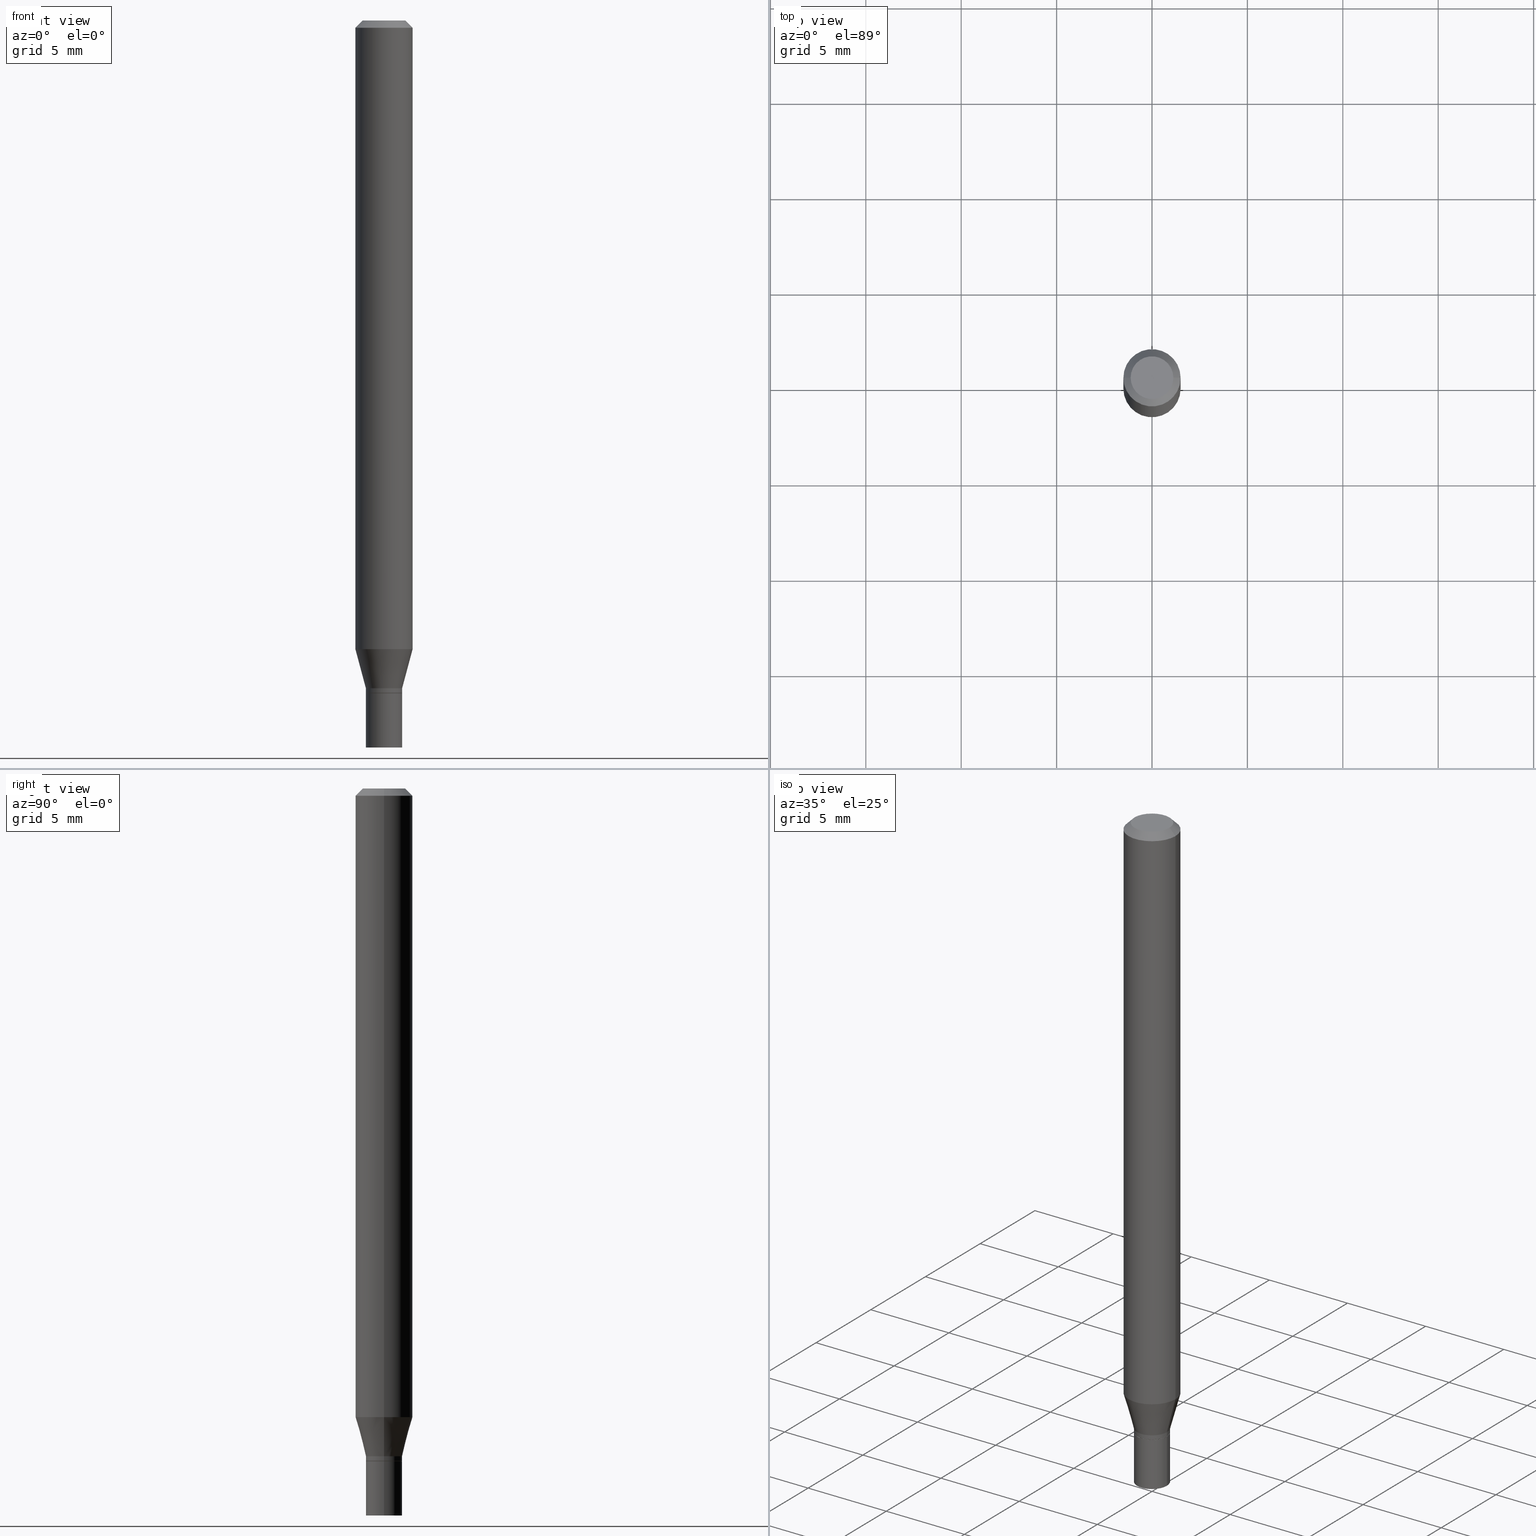
[diagram: canonical four-view strip — front | top / right | iso, engineering-drawing reading convention]
A machine part, canonical four-view strip (front | top / right | iso — engineering-drawing reading convention). The complete STEP part file that produces these views, byte-faithful:
ISO-10303-21;
HEADER;
FILE_DESCRIPTION (( 'STEP AP203' ),
    '1' );
FILE_NAME ('09297.STEP',
    '2024-03-14T18:25:24',
    ( '' ),
    ( '' ),
    'SwSTEP 2.0',
    'SolidWorks 2023',
    '' );
FILE_SCHEMA (( 'CONFIG_CONTROL_DESIGN' ));
ENDSEC;

DATA;
#1 = DIRECTION ( 'NONE',  ( 1.000000000000000000, -6.982962677686265922E-15, 4.888540261209747396E-29 ) ) ;
#2 = AXIS2_PLACEMENT_3D ( 'NONE', #431, #36, #171 ) ;
#3 = ADVANCED_FACE ( 'NONE', ( #71 ), #383, .F. ) ;
#4 = PERSON_AND_ORGANIZATION ( #232, #110 ) ;
#5 = ORIENTED_EDGE ( 'NONE', *, *, #219, .T. ) ;
#6 = AXIS2_PLACEMENT_3D ( 'NONE', #276, #61, #321 ) ;
#7 = CARTESIAN_POINT ( 'NONE',  ( -0.05904999999999999832, -1.870838193157667987E-15, -0.01499999999999999944 ) ) ;
#8 = PRODUCT_RELATED_PRODUCT_CATEGORY ( 'detail', '', ( #120 ) ) ;
#9 = LINE ( 'NONE', #150, #345 ) ;
#10 = ORIENTED_EDGE ( 'NONE', *, *, #367, .T. ) ;
#11 = DIRECTION ( 'NONE',  ( 1.000000000000000000, -6.982962677686274599E-15, 0.000000000000000000 ) ) ;
#12 = EDGE_LOOP ( 'NONE', ( #84, #48, #334, #108 ) ) ;
#13 = CONICAL_SURFACE ( 'NONE', #319, 0.03690000000000000224, 0.7853981633974739252 ) ;
#14 = ORIENTED_EDGE ( 'NONE', *, *, #343, .T. ) ;
#15 = CC_DESIGN_APPROVAL ( #155, ( #378 ) ) ;
#16 = ADVANCED_FACE ( 'NONE', ( #138 ), #244, .T. ) ;
#17 = DIRECTION ( 'NONE',  ( 1.000000000000000000, -6.982962677686265922E-15, 4.888540261209747396E-29 ) ) ;
#18 = ORIENTED_EDGE ( 'NONE', *, *, #149, .T. ) ;
#19 = LINE ( 'NONE', #271, #58 ) ;
#20 = PERSON_AND_ORGANIZATION ( #232, #110 ) ;
#21 = CIRCLE ( 'NONE', #2, 0.03740000000000000269 ) ;
#22 = APPROVAL_DATE_TIME ( #347, #155 ) ;
#23 = APPLICATION_PROTOCOL_DEFINITION ( 'international standard', 'config_control_design', 1994, #144 ) ;
#24 = DIRECTION ( 'NONE',  ( 1.000000000000000000, 0.000000000000000000, 0.000000000000000000 ) ) ;
#25 = FACE_OUTER_BOUND ( 'NONE', #217, .T. ) ;
#26 = DIRECTION ( 'NONE',  ( -2.445468806185136597E-29, 3.491481338843145583E-15, 1.000000000000000000 ) ) ;
#27 = PERSON_AND_ORGANIZATION ( #232, #110 ) ;
#28 = CARTESIAN_POINT ( 'NONE',  ( -0.03740000000000000269, 2.657429831742774886E-16, -1.839681723755335040E-30 ) ) ;
#29 = DIRECTION ( 'NONE',  ( 1.000000000000000000, -6.982962677686273021E-15, 0.000000000000000000 ) ) ;
#30 = CIRCLE ( 'NONE', #207, 0.04404999999999999888 ) ;
#31 = CALENDAR_DATE ( 2024, 14, 3 ) ;
#32 = FACE_OUTER_BOUND ( 'NONE', #12, .T. ) ;
#33 = VECTOR ( 'NONE', #227, 39.37007874015748143 ) ;
#34 = CARTESIAN_POINT ( 'NONE',  ( 3.369366921161882060E-29, -4.810562988658086927E-15, -1.377800000000000358 ) ) ;
#35 = FACE_OUTER_BOUND ( 'NONE', #297, .T. ) ;
#36 = DIRECTION ( 'NONE',  ( -2.445468806185136597E-29, 3.491481338843145583E-15, 1.000000000000000000 ) ) ;
#37 = EDGE_CURVE ( 'NONE', #50, #152, #142, .T. ) ;
#38 = CARTESIAN_POINT ( 'NONE',  ( -0.03690000000000000224, -4.583287532551042085E-15, -1.387800000000000367 ) ) ;
#39 = EDGE_LOOP ( 'NONE', ( #404, #176 ) ) ;
#40 = CIRCLE ( 'NONE', #69, 0.05904999999999999832 ) ;
#41 = LOCAL_TIME ( 14, 25, 24.00000000000000000, #65 ) ;
#42 = DIRECTION ( 'NONE',  ( -2.445468806185136597E-29, 3.491481338843145583E-15, 1.000000000000000000 ) ) ;
#43 = AXIS2_PLACEMENT_3D ( 'NONE', #211, #351, #29 ) ;
#44 = LOCAL_TIME ( 14, 25, 24.00000000000000000, #239 ) ;
#45 = ORIENTED_EDGE ( 'NONE', *, *, #106, .T. ) ;
#46 = DIRECTION ( 'NONE',  ( 1.000000000000000000, -6.982962677686265133E-15, 0.000000000000000000 ) ) ;
#47 = CARTESIAN_POINT ( 'NONE',  ( 0.05904999999999999832, -4.123439461173740327E-16, 2.879382386107500220E-30 ) ) ;
#48 = ORIENTED_EDGE ( 'NONE', *, *, #118, .T. ) ;
#49 = CARTESIAN_POINT ( 'NONE',  ( -0.05904999999999999832, 4.195754854663391478E-16, -2.904631170795521892E-30 ) ) ;
#50 = VERTEX_POINT ( 'NONE', #328 ) ;
#51 = ORIENTED_EDGE ( 'NONE', *, *, #339, .T. ) ;
#52 = ADVANCED_FACE ( 'NONE', ( #100 ), #290, .T. ) ;
#53 = CARTESIAN_POINT ( 'NONE',  ( 3.668203209277704895E-29, -5.237222008264718177E-15, -1.500000000000000222 ) ) ;
#54 = DIRECTION ( 'NONE',  ( -1.000000000000000000, 6.982962677686266711E-15, 0.000000000000000000 ) ) ;
#55 = AXIS2_PLACEMENT_3D ( 'NONE', #284, #433, #392 ) ;
#56 = PERSON_AND_ORGANIZATION ( #232, #110 ) ;
#57 = FACE_OUTER_BOUND ( 'NONE', #39, .T. ) ;
#58 = VECTOR ( 'NONE', #314, 39.37007874015748143 ) ;
#59 = EDGE_CURVE ( 'NONE', #454, #438, #30, .T. ) ;
#60 = DIRECTION ( 'NONE',  ( -1.000000000000000000, 6.982962677686265922E-15, -4.876176775795935793E-29 ) ) ;
#61 = DIRECTION ( 'NONE',  ( -2.445468806185136597E-29, 3.491481338843145583E-15, 1.000000000000000000 ) ) ;
#62 = APPROVAL_ROLE ( '' ) ;
#63 = CYLINDRICAL_SURFACE ( 'NONE', #461, 0.03740000000000000269 ) ;
#64 = PLANE ( 'NONE',  #233 ) ;
#65 = COORDINATED_UNIVERSAL_TIME_OFFSET ( 5, 0, .BEHIND. ) ;
#66 = CYLINDRICAL_SURFACE ( 'NONE', #79, 0.05904999999999999832 ) ;
#67 = EDGE_LOOP ( 'NONE', ( #222, #215, #411, #156 ) ) ;
#68 = DIRECTION ( 'NONE',  ( 1.000000000000000000, -6.982962677686265922E-15, 0.000000000000000000 ) ) ;
#69 = AXIS2_PLACEMENT_3D ( 'NONE', #460, #136, #206 ) ;
#70 = DIRECTION ( 'NONE',  ( 1.000000000000000000, -6.982962677686266711E-15, 0.000000000000000000 ) ) ;
#71 = FACE_OUTER_BOUND ( 'NONE', #220, .T. ) ;
#72 = ORIENTED_EDGE ( 'NONE', *, *, #255, .F. ) ;
#73 = EDGE_CURVE ( 'NONE', #416, #50, #423, .T. ) ;
#74 = AXIS2_PLACEMENT_3D ( 'NONE', #279, #391, #68 ) ;
#75 = ORIENTED_EDGE ( 'NONE', *, *, #101, .T. ) ;
#76 = ORIENTED_EDGE ( 'NONE', *, *, #380, .T. ) ;
#77 = CALENDAR_DATE ( 2024, 14, 3 ) ;
#78 = ORIENTED_EDGE ( 'NONE', *, *, #396, .F. ) ;
#79 = AXIS2_PLACEMENT_3D ( 'NONE', #99, #453, #170 ) ;
#80 = APPROVAL_PERSON_ORGANIZATION ( #169, #155, #62 ) ;
#81 = VERTEX_POINT ( 'NONE', #107 ) ;
#82 = VERTEX_POINT ( 'NONE', #204 ) ;
#83 = CARTESIAN_POINT ( 'NONE',  ( 0.03740000000000019698, -2.611628041454677314E-16, 1.823690114147689541E-30 ) ) ;
#84 = ORIENTED_EDGE ( 'NONE', *, *, #200, .F. ) ;
#85 = AXIS2_PLACEMENT_3D ( 'NONE', #151, #296, #121 ) ;
#86 = ORIENTED_EDGE ( 'NONE', *, *, #403, .T. ) ;
#87 = CC_DESIGN_PERSON_AND_ORGANIZATION_ASSIGNMENT ( #20, #322, ( #378 ) ) ;
#88 =( LENGTH_UNIT ( ) NAMED_UNIT ( * ) SI_UNIT ( $, .METRE. ) );
#89 = CARTESIAN_POINT ( 'NONE',  ( 0.03740000000000000269, -5.106640606191984188E-15, -1.387800000000000145 ) ) ;
#90 = ADVANCED_FACE ( 'NONE', ( #394 ), #64, .F. ) ;
#91 = APPROVAL_ROLE ( '' ) ;
#92 = DIRECTION ( 'NONE',  ( 1.000000000000000000, -6.982962677686261189E-15, 0.000000000000000000 ) ) ;
#93 = CONICAL_SURFACE ( 'NONE', #6, 0.03740000000000019004, 0.2617993877991501850 ) ;
#94 = CARTESIAN_POINT ( 'NONE',  ( 3.393821609223733606E-29, -4.845477802046518576E-15, -1.387800000000000367 ) ) ;
#95 = DIRECTION ( 'NONE',  ( -2.445468806185136597E-29, 3.491481338843145583E-15, 1.000000000000000000 ) ) ;
#96 = FACE_OUTER_BOUND ( 'NONE', #409, .T. ) ;
#97 = LINE ( 'NONE', #429, #126 ) ;
#98 = FACE_OUTER_BOUND ( 'NONE', #443, .T. ) ;
#99 = CARTESIAN_POINT ( 'NONE',  ( 0.000000000000000000, 0.000000000000000000, 0.000000000000000000 ) ) ;
#100 = FACE_OUTER_BOUND ( 'NONE', #413, .T. ) ;
#101 = EDGE_CURVE ( 'NONE', #125, #81, #97, .T. ) ;
#102 = CC_DESIGN_PERSON_AND_ORGANIZATION_ASSIGNMENT ( #235, #193, ( #120 ) ) ;
#103 = CARTESIAN_POINT ( 'NONE',  ( -0.03740000000000019698, -4.577989078202818105E-15, -1.387300000000000200 ) ) ;
#104 = SECURITY_CLASSIFICATION ( '', '', #457 ) ;
#105 = APPROVAL ( #157, 'UNSPECIFIED' ) ;
#106 = EDGE_CURVE ( 'NONE', #152, #190, #399, .T. ) ;
#107 = CARTESIAN_POINT ( 'NONE',  ( -0.05904999999999999832, -4.108879651699028783E-15, -1.297001100016135000 ) ) ;
#108 = ORIENTED_EDGE ( 'NONE', *, *, #403, .F. ) ;
#109 = AXIS2_PLACEMENT_3D ( 'NONE', #422, #95, #326 ) ;
#110 = ORGANIZATION ( 'UNSPECIFIED', 'UNSPECIFIED', '' ) ;
#111 = UNCERTAINTY_MEASURE_WITH_UNIT (LENGTH_MEASURE( 1.000000000000000082E-05 ), #191, 'distance_accuracy_value', 'NONE');
#112 = ORIENTED_EDGE ( 'NONE', *, *, #145, .F. ) ;
#113 = ORIENTED_EDGE ( 'NONE', *, *, #444, .F. ) ;
#114 = PERSON_AND_ORGANIZATION_ROLE ( 'classification_officer' ) ;
#115 = LINE ( 'NONE', #47, #195 ) ;
#116 = ORIENTED_EDGE ( 'NONE', *, *, #451, .T. ) ;
#117 = EDGE_CURVE ( 'NONE', #397, #186, #153, .T. ) ;
#118 = EDGE_CURVE ( 'NONE', #81, #401, #245, .T. ) ;
#119 = CIRCLE ( 'NONE', #85, 0.05904999999999999832 ) ;
#120 = PRODUCT ( '09297', '09297', '', ( #159 ) ) ;
#121 = DIRECTION ( 'NONE',  ( 1.000000000000000000, -6.982962677686266711E-15, 0.000000000000000000 ) ) ;
#122 = ORIENTED_EDGE ( 'NONE', *, *, #117, .F. ) ;
#123 = ORIENTED_EDGE ( 'NONE', *, *, #139, .T. ) ;
#124 = CARTESIAN_POINT ( 'NONE',  ( -0.05904999999999999832, 3.599717260347268549E-16, -0.01499999999999999944 ) ) ;
#125 = VERTEX_POINT ( 'NONE', #360 ) ;
#126 = VECTOR ( 'NONE', #241, 39.37007874015748143 ) ;
#127 = MANIFOLD_SOLID_BREP ( 'Body-Move/Copy2[1]', #146 ) ;
#128 = CARTESIAN_POINT ( 'NONE',  ( 2.611628041455002719E-16, 0.03739999999999515934, -1.387800000000000145 ) ) ;
#129 = CARTESIAN_POINT ( 'NONE',  ( 0.05904999999999999832, -4.574846268510561447E-16, -0.01499999999999999944 ) ) ;
#130 = DIRECTION ( 'NONE',  ( 2.438088387897960049E-29, -3.491481338843145188E-15, -1.000000000000000000 ) ) ;
#131 = CARTESIAN_POINT ( 'NONE',  ( 3.075995059520799729E-16, 0.04404999999999999888, -9.443317881941664879E-17 ) ) ;
#132 = APPROVAL_STATUS ( 'not_yet_approved' ) ;
#133 = DIRECTION ( 'NONE',  ( 1.000000000000000000, -6.982962677686274599E-15, 0.000000000000000000 ) ) ;
#134 = AXIS2_PLACEMENT_3D ( 'NONE', #237, #26, #70 ) ;
#135 = DIRECTION ( 'NONE',  ( 1.000000000000000000, -6.982962677686265922E-15, 4.876176775795935793E-29 ) ) ;
#136 = DIRECTION ( 'NONE',  ( -2.445468806185136597E-29, 3.491481338843145583E-15, 1.000000000000000000 ) ) ;
#137 = CARTESIAN_POINT ( 'NONE',  ( 3.668203209277705088E-31, -5.237222008264718399E-17, -0.01499999999999999944 ) ) ;
#138 = FACE_OUTER_BOUND ( 'NONE', #434, .T. ) ;
#139 = EDGE_CURVE ( 'NONE', #362, #125, #223, .T. ) ;
#140 = DIRECTION ( 'NONE',  ( 1.000000000000000000, -6.982962677686265922E-15, 0.000000000000000000 ) ) ;
#141 = AXIS2_PLACEMENT_3D ( 'NONE', #197, #448, #382 ) ;
#142 = LINE ( 'NONE', #38, #318 ) ;
#143 = DIMENSIONAL_EXPONENTS ( 1.000000000000000000, 0.000000000000000000, 0.000000000000000000, 0.000000000000000000, 0.000000000000000000, 0.000000000000000000, 0.000000000000000000 ) ;
#144 = APPLICATION_CONTEXT ( 'configuration controlled 3d designs of mechanical parts and assemblies' ) ;
#145 = EDGE_CURVE ( 'NONE', #401, #81, #40, .T. ) ;
#146 = CLOSED_SHELL ( 'NONE', ( #445, #90, #264, #310 ) ) ;
#147 = CIRCLE ( 'NONE', #216, 0.03740000000000000269 ) ;
#148 = LINE ( 'NONE', #49, #181 ) ;
#149 = EDGE_CURVE ( 'NONE', #335, #82, #21, .T. ) ;
#150 = CARTESIAN_POINT ( 'NONE',  ( 0.03740000000000019004, -5.071725792803554116E-15, -1.377800000000000358 ) ) ;
#151 = CARTESIAN_POINT ( 'NONE',  ( 3.668203209277705088E-31, -5.237222008264718399E-17, -0.01499999999999999944 ) ) ;
#152 = VERTEX_POINT ( 'NONE', #103 ) ;
#153 = CIRCLE ( 'NONE', #134, 0.05904999999999999832 ) ;
#154 = ORIENTED_EDGE ( 'NONE', *, *, #219, .F. ) ;
#155 = APPROVAL ( #355, 'UNSPECIFIED' ) ;
#156 = ORIENTED_EDGE ( 'NONE', *, *, #177, .F. ) ;
#157 = APPROVAL_STATUS ( 'not_yet_approved' ) ;
#158 = CONICAL_SURFACE ( 'NONE', #377, 0.05904999999999999832, 0.7853981633974445042 ) ;
#159 = MECHANICAL_CONTEXT ( 'NONE', #144, 'mechanical' ) ;
#160 = PLANE ( 'NONE',  #257 ) ;
#161 = CARTESIAN_POINT ( 'NONE',  ( 3.369366921161882060E-29, -4.810562988658086927E-15, -1.377800000000000358 ) ) ;
#162 = CALENDAR_DATE ( 2024, 14, 3 ) ;
#163 = DIRECTION ( 'NONE',  ( 1.000000000000000000, -6.982962677686261189E-15, 0.000000000000000000 ) ) ;
#164 = COORDINATED_UNIVERSAL_TIME_OFFSET ( 5, 0, .BEHIND. ) ;
#165 = FACE_OUTER_BOUND ( 'NONE', #373, .T. ) ;
#166 = CARTESIAN_POINT ( 'NONE',  ( -2.903582104602009454E-45, 4.145545716378002760E-31, 1.187331483132478339E-16 ) ) ;
#167 = COORDINATED_UNIVERSAL_TIME_OFFSET ( 5, 0, .BEHIND. ) ;
#168 = ADVANCED_FACE ( 'NONE', ( #426 ), #358, .T. ) ;
#169 = PERSON_AND_ORGANIZATION ( #232, #110 ) ;
#170 = DIRECTION ( 'NONE',  ( 1.000000000000000000, -6.982962677686266711E-15, 4.876176775795936353E-29 ) ) ;
#171 = DIRECTION ( 'NONE',  ( 1.000000000000000000, -6.982962677686274599E-15, 0.000000000000000000 ) ) ;
#172 = DIRECTION ( 'NONE',  ( 1.000000000000000000, -6.982962677686266711E-15, 4.876176775795935793E-29 ) ) ;
#173 = ORIENTED_EDGE ( 'NONE', *, *, #117, .T. ) ;
#174 = DIRECTION ( 'NONE',  ( -0.7071067811865656694, 7.493145998870420424E-15, 0.7071067811865294761 ) ) ;
#175 = AXIS2_PLACEMENT_3D ( 'NONE', #161, #357, #213 ) ;
#176 = ORIENTED_EDGE ( 'NONE', *, *, #424, .F. ) ;
#177 = EDGE_CURVE ( 'NONE', #82, #335, #147, .T. ) ;
#178 = ORIENTED_EDGE ( 'NONE', *, *, #339, .F. ) ;
#179 = CARTESIAN_POINT ( 'NONE',  ( 0.03740000000000019698, -5.104894865522563473E-15, -1.387300000000000200 ) ) ;
#180 = ORIENTED_EDGE ( 'NONE', *, *, #145, .T. ) ;
#181 = VECTOR ( 'NONE', #242, 39.37007874015748143 ) ;
#182 = AXIS2_PLACEMENT_3D ( 'NONE', #342, #272, #24 ) ;
#183 = EDGE_LOOP ( 'NONE', ( #116, #14, #225, #113 ) ) ;
#184 = CC_DESIGN_PERSON_AND_ORGANIZATION_ASSIGNMENT ( #27, #315, ( #449 ) ) ;
#185 = CARTESIAN_POINT ( 'NONE',  ( 0.05904999999999999832, -4.647161662000212105E-16, -0.01499999999999999944 ) ) ;
#186 = VERTEX_POINT ( 'NONE', #7 ) ;
#187 = EDGE_LOOP ( 'NONE', ( #226, #336, #442, #178 ) ) ;
#188 = CIRCLE ( 'NONE', #282, 0.03740000000000019698 ) ;
#189 = CARTESIAN_POINT ( 'NONE',  ( 0.05904999999999999832, -4.940799083282741618E-15, -1.297001100016135000 ) ) ;
#190 = VERTEX_POINT ( 'NONE', #179 ) ;
#191 =( CONVERSION_BASED_UNIT ( 'INCH', #304 ) LENGTH_UNIT ( ) NAMED_UNIT ( #143 ) );
#192 = EDGE_CURVE ( 'NONE', #292, #332, #393, .T. ) ;
#193 = PERSON_AND_ORGANIZATION_ROLE ( 'design_owner' ) ;
#194 = CARTESIAN_POINT ( 'NONE',  ( 0.03690000000000000224, -5.103149124853141181E-15, -1.387800000000000367 ) ) ;
#195 = VECTOR ( 'NONE', #375, 39.37007874015748143 ) ;
#196 = EDGE_CURVE ( 'NONE', #190, #152, #188, .T. ) ;
#197 = CARTESIAN_POINT ( 'NONE',  ( 0.000000000000000000, 0.000000000000000000, 0.000000000000000000 ) ) ;
#198 = APPROVAL ( #132, 'UNSPECIFIED' ) ;
#199 = DIRECTION ( 'NONE',  ( -2.438088387897960049E-29, 3.491481338843145188E-15, 1.000000000000000000 ) ) ;
#200 = EDGE_CURVE ( 'NONE', #81, #186, #148, .T. ) ;
#201 = CARTESIAN_POINT ( 'NONE',  ( 3.393821609223733606E-29, -4.845477802046518576E-15, -1.387800000000000367 ) ) ;
#202 = DATE_TIME_ROLE ( 'creation_date' ) ;
#203 = LINE ( 'NONE', #28, #251 ) ;
#204 = CARTESIAN_POINT ( 'NONE',  ( -0.03740000000000000269, -4.775606921981340198E-15, -1.387800000000000145 ) ) ;
#205 = FACE_OUTER_BOUND ( 'NONE', #250, .T. ) ;
#206 = DIRECTION ( 'NONE',  ( 1.000000000000000000, -6.982962677686273021E-15, 0.000000000000000000 ) ) ;
#207 = AXIS2_PLACEMENT_3D ( 'NONE', #166, #280, #1 ) ;
#208 = CC_DESIGN_DATE_AND_TIME_ASSIGNMENT ( #212, #313, ( #104 ) ) ;
#209 = AXIS2_PLACEMENT_3D ( 'NONE', #201, #452, #163 ) ;
#210 = CARTESIAN_POINT ( 'NONE',  ( 0.000000000000000000, 0.000000000000000000, 0.000000000000000000 ) ) ;
#211 = CARTESIAN_POINT ( 'NONE',  ( 3.171775731677266837E-29, -4.528455137165367487E-15, -1.297001100016135000 ) ) ;
#212 = DATE_AND_TIME ( #162, #41 ) ;
#213 = DIRECTION ( 'NONE',  ( 1.000000000000000000, -6.982962677686265922E-15, 0.000000000000000000 ) ) ;
#214 = ORIENTED_EDGE ( 'NONE', *, *, #380, .F. ) ;
#215 = ORIENTED_EDGE ( 'NONE', *, *, #192, .T. ) ;
#216 = AXIS2_PLACEMENT_3D ( 'NONE', #287, #402, #218 ) ;
#217 = EDGE_LOOP ( 'NONE', ( #228, #301, #5, #86 ) ) ;
#218 = DIRECTION ( 'NONE',  ( 1.000000000000000000, -6.982962677686274599E-15, 0.000000000000000000 ) ) ;
#219 = EDGE_CURVE ( 'NONE', #438, #186, #432, .T. ) ;
#220 = EDGE_LOOP ( 'NONE', ( #262, #312 ) ) ;
#221 = CARTESIAN_POINT ( 'NONE',  ( 0.03740000000000019004, -5.071725792803554116E-15, -1.377800000000000358 ) ) ;
#222 = ORIENTED_EDGE ( 'NONE', *, *, #343, .F. ) ;
#223 = CIRCLE ( 'NONE', #175, 0.03740000000000019004 ) ;
#224 = CARTESIAN_POINT ( 'NONE',  ( -2.903582104602009454E-45, 4.145545716378002760E-31, 1.187331483132478339E-16 ) ) ;
#225 = ORIENTED_EDGE ( 'NONE', *, *, #149, .F. ) ;
#226 = ORIENTED_EDGE ( 'NONE', *, *, #73, .T. ) ;
#227 = DIRECTION ( 'NONE',  ( -2.445468806185136877E-29, 3.491481338843145188E-15, 1.000000000000000000 ) ) ;
#228 = ORIENTED_EDGE ( 'NONE', *, *, #263, .F. ) ;
#229 = APPLICATION_PROTOCOL_DEFINITION ( 'international standard', 'config_control_design', 1994, #439 ) ;
#230 = DATE_AND_TIME ( #31, #306 ) ;
#231 = DIRECTION ( 'NONE',  ( 2.445468806185136597E-29, -3.491481338843145583E-15, -1.000000000000000000 ) ) ;
#232 = PERSON ( 'UNSPECIFIED', 'UNSPECIFIED', 'UNSPECIFIED', ('UNSPECIFIED'), ('UNSPECIFIED'), ('UNSPECIFIED') ) ;
#233 = AXIS2_PLACEMENT_3D ( 'NONE', #278, #199, #390 ) ;
#234 = CYLINDRICAL_SURFACE ( 'NONE', #299, 0.03740000000000000269 ) ;
#235 = PERSON_AND_ORGANIZATION ( #232, #110 ) ;
#236 = LINE ( 'NONE', #194, #298 ) ;
#237 = CARTESIAN_POINT ( 'NONE',  ( 3.668203209277705088E-31, -5.237222008264718399E-17, -0.01499999999999999944 ) ) ;
#238 = CARTESIAN_POINT ( 'NONE',  ( -0.04404999999999999888, 3.337856159934036604E-16, 1.187331483132455906E-16 ) ) ;
#239 = COORDINATED_UNIVERSAL_TIME_OFFSET ( 5, 0, .BEHIND. ) ;
#240 = CYLINDRICAL_SURFACE ( 'NONE', #330, 0.03740000000000019698 ) ;
#241 = DIRECTION ( 'NONE',  ( -0.2588190451025214611, 5.211531920934550253E-15, 0.9659258262890679791 ) ) ;
#242 = DIRECTION ( 'NONE',  ( -2.445468806185136877E-29, 3.491481338843145188E-15, 1.000000000000000000 ) ) ;
#243 = DIRECTION ( 'NONE',  ( 0.7071067811865447972, -7.319954787623246579E-15, -0.7071067811865502373 ) ) ;
#244 = CYLINDRICAL_SURFACE ( 'NONE', #109, 0.03740000000000019698 ) ;
#245 = CIRCLE ( 'NONE', #43, 0.05904999999999999832 ) ;
#246 = AXIS2_PLACEMENT_3D ( 'NONE', #53, #384, #133 ) ;
#247 = DIRECTION ( 'NONE',  ( -2.445468806185136597E-29, 3.491481338843145583E-15, 1.000000000000000000 ) ) ;
#248 = ADVANCED_BREP_SHAPE_REPRESENTATION ( '09297', ( #127, #288, #182 ), #283 ) ;
#249 = VECTOR ( 'NONE', #464, 39.37007874015748143 ) ;
#250 = EDGE_LOOP ( 'NONE', ( #252, #366, #51, #370 ) ) ;
#251 = VECTOR ( 'NONE', #425, 39.37007874015748143 ) ;
#252 = ORIENTED_EDGE ( 'NONE', *, *, #37, .F. ) ;
#253 = PRODUCT_DEFINITION_SHAPE ( 'NONE', 'NONE',  #378 ) ;
#254 = ADVANCED_FACE ( 'NONE', ( #205 ), #13, .T. ) ;
#255 = EDGE_CURVE ( 'NONE', #125, #362, #337, .T. ) ;
#256 = ORIENTED_EDGE ( 'NONE', *, *, #289, .F. ) ;
#257 = AXIS2_PLACEMENT_3D ( 'NONE', #128, #130, #350 ) ;
#258 = LOCAL_TIME ( 14, 25, 24.00000000000000000, #167 ) ;
#259 = ORIENTED_EDGE ( 'NONE', *, *, #367, .F. ) ;
#260 = CARTESIAN_POINT ( 'NONE',  ( 0.000000000000000000, 0.000000000000000000, 0.000000000000000000 ) ) ;
#261 = ORIENTED_EDGE ( 'NONE', *, *, #59, .F. ) ;
#262 = ORIENTED_EDGE ( 'NONE', *, *, #395, .T. ) ;
#263 = EDGE_CURVE ( 'NONE', #454, #397, #356, .T. ) ;
#264 = ADVANCED_FACE ( 'NONE', ( #385 ), #63, .T. ) ;
#265 = CALENDAR_DATE ( 2024, 14, 3 ) ;
#266 = DIRECTION ( 'NONE',  ( -2.438088387897960049E-29, 3.491481338843145188E-15, 1.000000000000000000 ) ) ;
#267 = CARTESIAN_POINT ( 'NONE',  ( 0.000000000000000000, 0.000000000000000000, 0.000000000000000000 ) ) ;
#268 = PERSON_AND_ORGANIZATION ( #232, #110 ) ;
#269 = CARTESIAN_POINT ( 'NONE',  ( 3.668203209277705088E-31, -5.237222008264718399E-17, -0.01499999999999999944 ) ) ;
#270 = ADVANCED_FACE ( 'NONE', ( #25 ), #459, .T. ) ;
#271 = CARTESIAN_POINT ( 'NONE',  ( 0.03740000000000000269, -2.611628041454664002E-16, 1.823690114147680082E-30 ) ) ;
#272 = DIRECTION ( 'NONE',  ( 0.000000000000000000, 0.000000000000000000, 1.000000000000000000 ) ) ;
#273 = PLANE ( 'NONE',  #417 ) ;
#274 = ORIENTED_EDGE ( 'NONE', *, *, #289, .T. ) ;
#275 = VECTOR ( 'NONE', #414, 39.37007874015748143 ) ;
#276 = CARTESIAN_POINT ( 'NONE',  ( 3.369366921161882060E-29, -4.810562988658086927E-15, -1.377800000000000358 ) ) ;
#277 = CARTESIAN_POINT ( 'NONE',  ( -0.03740000000000019698, 2.657429831742788691E-16, -1.839681723755344499E-30 ) ) ;
#278 = CARTESIAN_POINT ( 'NONE',  ( 3.576687321579069994E-29, -5.368277968210015545E-15, -1.500000000000000222 ) ) ;
#279 = CARTESIAN_POINT ( 'NONE',  ( 3.369366921161882060E-29, -4.810562988658086927E-15, -1.377800000000000358 ) ) ;
#280 = DIRECTION ( 'NONE',  ( -2.445468806185136597E-29, 3.491481338843145583E-15, 1.000000000000000000 ) ) ;
#281 = DIRECTION ( 'NONE',  ( 1.000000000000000000, -6.982962677686265133E-15, 0.000000000000000000 ) ) ;
#282 = AXIS2_PLACEMENT_3D ( 'NONE', #405, #371, #46 ) ;
#283 =( GEOMETRIC_REPRESENTATION_CONTEXT ( 3 ) GLOBAL_UNCERTAINTY_ASSIGNED_CONTEXT ( ( #111 ) ) GLOBAL_UNIT_ASSIGNED_CONTEXT ( ( #191, #307, #450 ) ) REPRESENTATION_CONTEXT ( 'NONE', 'WORKASPACE' ) );
#284 = CARTESIAN_POINT ( 'NONE',  ( 3.393821609223733606E-29, -4.845477802046518576E-15, -1.387800000000000367 ) ) ;
#285 = ADVANCED_FACE ( 'NONE', ( #32 ), #66, .T. ) ;
#286 = ORIENTED_EDGE ( 'NONE', *, *, #177, .T. ) ;
#287 = CARTESIAN_POINT ( 'NONE',  ( 3.393821609223733045E-29, -4.845477802046517788E-15, -1.387800000000000145 ) ) ;
#288 = MANIFOLD_SOLID_BREP ( 'Body-Move/Copy2[2]', #456 ) ;
#289 = EDGE_CURVE ( 'NONE', #152, #125, #323, .T. ) ;
#290 = CONICAL_SURFACE ( 'NONE', #415, 0.03740000000000019004, 0.2617993877991501850 ) ;
#291 = CIRCLE ( 'NONE', #408, 0.04404999999999999888 ) ;
#292 = VERTEX_POINT ( 'NONE', #316 ) ;
#293 = CARTESIAN_POINT ( 'NONE',  ( 3.668203209277704895E-29, -5.237222008264718177E-15, -1.500000000000000222 ) ) ;
#294 = LINE ( 'NONE', #83, #33 ) ;
#295 = ORIENTED_EDGE ( 'NONE', *, *, #263, .T. ) ;
#296 = DIRECTION ( 'NONE',  ( -2.445468806185136597E-29, 3.491481338843145583E-15, 1.000000000000000000 ) ) ;
#297 = EDGE_LOOP ( 'NONE', ( #180, #300, #122, #78 ) ) ;
#298 = VECTOR ( 'NONE', #344, 39.37007874015748143 ) ;
#299 = AXIS2_PLACEMENT_3D ( 'NONE', #267, #463, #354 ) ;
#300 = ORIENTED_EDGE ( 'NONE', *, *, #200, .T. ) ;
#301 = ORIENTED_EDGE ( 'NONE', *, *, #395, .F. ) ;
#302 = ADVANCED_FACE ( 'NONE', ( #165 ), #158, .T. ) ;
#303 = ADVANCED_FACE ( 'NONE', ( #35 ), #389, .T. ) ;
#304 = LENGTH_MEASURE_WITH_UNIT ( LENGTH_MEASURE( 0.02539999999999999897 ), #88 );
#305 = AXIS2_PLACEMENT_3D ( 'NONE', #269, #231, #54 ) ;
#306 = LOCAL_TIME ( 14, 25, 24.00000000000000000, #349 ) ;
#307 =( NAMED_UNIT ( * ) PLANE_ANGLE_UNIT ( ) SI_UNIT ( $, .RADIAN. ) );
#308 = DATE_AND_TIME ( #381, #44 ) ;
#309 = DIRECTION ( 'NONE',  ( -2.445468806185136597E-29, 3.491481338843145583E-15, 1.000000000000000000 ) ) ;
#310 = ADVANCED_FACE ( 'NONE', ( #428 ), #160, .F. ) ;
#311 = APPROVAL_DATE_TIME ( #230, #105 ) ;
#312 = ORIENTED_EDGE ( 'NONE', *, *, #59, .T. ) ;
#313 = DATE_TIME_ROLE ( 'classification_date' ) ;
#314 = DIRECTION ( 'NONE',  ( -2.445468806185136877E-29, 3.491481338843145188E-15, 1.000000000000000000 ) ) ;
#315 = PERSON_AND_ORGANIZATION_ROLE ( 'design_supplier' ) ;
#316 = CARTESIAN_POINT ( 'NONE',  ( -0.03740000000000000269, -4.775606921981340198E-15, -1.500000000000000222 ) ) ;
#317 = DIRECTION ( 'NONE',  ( -2.445468806185136597E-29, 3.491481338843145583E-15, 1.000000000000000000 ) ) ;
#318 = VECTOR ( 'NONE', #174, 39.37007874015748143 ) ;
#319 = AXIS2_PLACEMENT_3D ( 'NONE', #420, #309, #92 ) ;
#320 = LOCAL_TIME ( 14, 25, 24.00000000000000000, #164 ) ;
#321 = DIRECTION ( 'NONE',  ( 1.000000000000000000, -6.982962677686265922E-15, 0.000000000000000000 ) ) ;
#322 = PERSON_AND_ORGANIZATION_ROLE ( 'creator' ) ;
#323 = LINE ( 'NONE', #277, #249 ) ;
#324 = CARTESIAN_POINT ( 'NONE',  ( 3.393821609223733606E-29, -4.845477802046518576E-15, -1.387800000000000367 ) ) ;
#325 = ADVANCED_FACE ( 'NONE', ( #57 ), #273, .F. ) ;
#326 = DIRECTION ( 'NONE',  ( 1.000000000000000000, -6.982962677686265922E-15, 4.876176775795935793E-29 ) ) ;
#327 = CC_DESIGN_PERSON_AND_ORGANIZATION_ASSIGNMENT ( #4, #114, ( #104 ) ) ;
#328 = CARTESIAN_POINT ( 'NONE',  ( -0.03690000000000000224, -4.580638305376928517E-15, -1.387800000000000367 ) ) ;
#329 = CC_DESIGN_DATE_AND_TIME_ASSIGNMENT ( #308, #202, ( #378 ) ) ;
#330 = AXIS2_PLACEMENT_3D ( 'NONE', #260, #412, #441 ) ;
#331 = ORIENTED_EDGE ( 'NONE', *, *, #192, .F. ) ;
#332 = VERTEX_POINT ( 'NONE', #419 ) ;
#333 = AXIS2_PLACEMENT_3D ( 'NONE', #324, #247, #361 ) ;
#334 = ORIENTED_EDGE ( 'NONE', *, *, #396, .T. ) ;
#335 = VERTEX_POINT ( 'NONE', #89 ) ;
#336 = ORIENTED_EDGE ( 'NONE', *, *, #37, .T. ) ;
#337 = CIRCLE ( 'NONE', #74, 0.03740000000000019004 ) ;
#338 = APPROVAL_PERSON_ORGANIZATION ( #268, #105, #91 ) ;
#339 = EDGE_CURVE ( 'NONE', #416, #190, #236, .T. ) ;
#340 = DIRECTION ( 'NONE',  ( 0.2588190451025214611, 1.565188264969620982E-15, 0.9659258262890679791 ) ) ;
#341 = ORIENTED_EDGE ( 'NONE', *, *, #255, .T. ) ;
#342 = CARTESIAN_POINT ( 'NONE',  ( 0.000000000000000000, 0.000000000000000000, 0.000000000000000000 ) ) ;
#343 = EDGE_CURVE ( 'NONE', #292, #82, #203, .T. ) ;
#344 = DIRECTION ( 'NONE',  ( 0.7071067811865656694, -2.468850131082446387E-15, 0.7071067811865294761 ) ) ;
#345 = VECTOR ( 'NONE', #340, 39.37007874015748143 ) ;
#346 = CC_DESIGN_APPROVAL ( #198, ( #104 ) ) ;
#347 = DATE_AND_TIME ( #265, #320 ) ;
#348 = CARTESIAN_POINT ( 'NONE',  ( 3.392598874820640244E-29, -4.843732061377097073E-15, -1.387300000000000200 ) ) ;
#349 = COORDINATED_UNIVERSAL_TIME_OFFSET ( 5, 0, .BEHIND. ) ;
#350 = DIRECTION ( 'NONE',  ( -1.000000000000000000, 6.982962677686265922E-15, -4.876176775795935793E-29 ) ) ;
#351 = DIRECTION ( 'NONE',  ( -2.445468806185136597E-29, 3.491481338843145583E-15, 1.000000000000000000 ) ) ;
#352 = APPROVAL_ROLE ( '' ) ;
#353 = ADVANCED_FACE ( 'NONE', ( #96 ), #240, .T. ) ;
#354 = DIRECTION ( 'NONE',  ( 1.000000000000000000, -6.982962677686266711E-15, 4.876176775795935793E-29 ) ) ;
#355 = APPROVAL_STATUS ( 'not_yet_approved' ) ;
#356 = LINE ( 'NONE', #129, #436 ) ;
#357 = DIRECTION ( 'NONE',  ( -2.445468806185136597E-29, 3.491481338843145583E-15, 1.000000000000000000 ) ) ;
#358 = CONICAL_SURFACE ( 'NONE', #333, 0.03690000000000000224, 0.7853981633974739252 ) ;
#359 = DIRECTION ( 'NONE',  ( -1.000000000000000000, 6.982962677686266711E-15, 0.000000000000000000 ) ) ;
#360 = CARTESIAN_POINT ( 'NONE',  ( -0.03740000000000019004, -4.326849828591418371E-15, -1.377800000000000358 ) ) ;
#361 = DIRECTION ( 'NONE',  ( 1.000000000000000000, -6.982962677686261189E-15, 0.000000000000000000 ) ) ;
#362 = VERTEX_POINT ( 'NONE', #221 ) ;
#363 = DATE_AND_TIME ( #77, #258 ) ;
#364 = CC_DESIGN_APPROVAL ( #105, ( #449 ) ) ;
#365 = EDGE_LOOP ( 'NONE', ( #376, #331 ) ) ;
#366 = ORIENTED_EDGE ( 'NONE', *, *, #424, .T. ) ;
#367 = EDGE_CURVE ( 'NONE', #362, #401, #9, .T. ) ;
#368 = APPROVAL_DATE_TIME ( #363, #198 ) ;
#369 = AXIS2_PLACEMENT_3D ( 'NONE', #293, #42, #11 ) ;
#370 = ORIENTED_EDGE ( 'NONE', *, *, #106, .F. ) ;
#371 = DIRECTION ( 'NONE',  ( -2.445468806185136597E-29, 3.491481338843145583E-15, 1.000000000000000000 ) ) ;
#372 = DIRECTION ( 'NONE',  ( -2.445468806185136597E-29, 3.491481338843145583E-15, 1.000000000000000000 ) ) ;
#373 = EDGE_LOOP ( 'NONE', ( #261, #295, #173, #154 ) ) ;
#374 = ORIENTED_EDGE ( 'NONE', *, *, #118, .F. ) ;
#375 = DIRECTION ( 'NONE',  ( -2.445468806185136877E-29, 3.491481338843145188E-15, 1.000000000000000000 ) ) ;
#376 = ORIENTED_EDGE ( 'NONE', *, *, #451, .F. ) ;
#377 = AXIS2_PLACEMENT_3D ( 'NONE', #137, #458, #359 ) ;
#378 = PRODUCT_DEFINITION ( 'UNKNOWN', '', #449, #435 ) ;
#379 = DIRECTION ( 'NONE',  ( -2.445468806185136597E-29, 3.491481338843145583E-15, 1.000000000000000000 ) ) ;
#380 = EDGE_CURVE ( 'NONE', #190, #362, #294, .T. ) ;
#381 = CALENDAR_DATE ( 2024, 14, 3 ) ;
#382 = DIRECTION ( 'NONE',  ( 1.000000000000000000, -6.982962677686266711E-15, 4.876176775795936353E-29 ) ) ;
#383 = PLANE ( 'NONE',  #421 ) ;
#384 = DIRECTION ( 'NONE',  ( -2.445468806185136597E-29, 3.491481338843145583E-15, 1.000000000000000000 ) ) ;
#385 = FACE_OUTER_BOUND ( 'NONE', #67, .T. ) ;
#386 = ORIENTED_EDGE ( 'NONE', *, *, #139, .F. ) ;
#387 = FACE_OUTER_BOUND ( 'NONE', #183, .T. ) ;
#388 = PERSON_AND_ORGANIZATION_ROLE ( 'creator' ) ;
#389 = CYLINDRICAL_SURFACE ( 'NONE', #141, 0.05904999999999999832 ) ;
#390 = DIRECTION ( 'NONE',  ( 1.000000000000000000, -6.982962677686265922E-15, 4.876176775795935793E-29 ) ) ;
#391 = DIRECTION ( 'NONE',  ( -2.445468806185136597E-29, 3.491481338843145583E-15, 1.000000000000000000 ) ) ;
#392 = DIRECTION ( 'NONE',  ( 1.000000000000000000, -6.982962677686261189E-15, 0.000000000000000000 ) ) ;
#393 = CIRCLE ( 'NONE', #369, 0.03740000000000000269 ) ;
#394 = FACE_OUTER_BOUND ( 'NONE', #365, .T. ) ;
#395 = EDGE_CURVE ( 'NONE', #438, #454, #291, .T. ) ;
#396 = EDGE_CURVE ( 'NONE', #401, #397, #115, .T. ) ;
#397 = VERTEX_POINT ( 'NONE', #185 ) ;
#398 = SHAPE_DEFINITION_REPRESENTATION ( #253, #248 ) ;
#399 = CIRCLE ( 'NONE', #447, 0.03740000000000019698 ) ;
#400 = CIRCLE ( 'NONE', #246, 0.03740000000000000269 ) ;
#401 = VERTEX_POINT ( 'NONE', #189 ) ;
#402 = DIRECTION ( 'NONE',  ( -2.445468806185136597E-29, 3.491481338843145583E-15, 1.000000000000000000 ) ) ;
#403 = EDGE_CURVE ( 'NONE', #186, #397, #119, .T. ) ;
#404 = ORIENTED_EDGE ( 'NONE', *, *, #73, .F. ) ;
#405 = CARTESIAN_POINT ( 'NONE',  ( 3.392598874820640244E-29, -4.843732061377097073E-15, -1.387300000000000200 ) ) ;
#406 = EDGE_LOOP ( 'NONE', ( #18, #286 ) ) ;
#407 = ADVANCED_FACE ( 'NONE', ( #98 ), #93, .T. ) ;
#408 = AXIS2_PLACEMENT_3D ( 'NONE', #224, #372, #17 ) ;
#409 = EDGE_LOOP ( 'NONE', ( #446, #274, #386, #214 ) ) ;
#410 = CC_DESIGN_SECURITY_CLASSIFICATION ( #104, ( #449 ) ) ;
#411 = ORIENTED_EDGE ( 'NONE', *, *, #444, .T. ) ;
#412 = DIRECTION ( 'NONE',  ( -2.445468806185136597E-29, 3.491481338843145583E-15, 1.000000000000000000 ) ) ;
#413 = EDGE_LOOP ( 'NONE', ( #437, #341, #10, #374 ) ) ;
#414 = DIRECTION ( 'NONE',  ( -0.7071067811865447972, 2.468850131082228267E-15, -0.7071067811865502373 ) ) ;
#415 = AXIS2_PLACEMENT_3D ( 'NONE', #34, #466, #140 ) ;
#416 = VERTEX_POINT ( 'NONE', #427 ) ;
#417 = AXIS2_PLACEMENT_3D ( 'NONE', #94, #266, #135 ) ;
#418 = CARTESIAN_POINT ( 'NONE',  ( 0.04404999999999999888, -3.798447818264458600E-16, 1.187331483132502252E-16 ) ) ;
#419 = CARTESIAN_POINT ( 'NONE',  ( 0.03740000000000000269, -5.498384812410185366E-15, -1.500000000000000222 ) ) ;
#420 = CARTESIAN_POINT ( 'NONE',  ( 3.393821609223733606E-29, -4.845477802046518576E-15, -1.387800000000000367 ) ) ;
#421 = AXIS2_PLACEMENT_3D ( 'NONE', #131, #465, #60 ) ;
#422 = CARTESIAN_POINT ( 'NONE',  ( 0.000000000000000000, 0.000000000000000000, 0.000000000000000000 ) ) ;
#423 = CIRCLE ( 'NONE', #55, 0.03690000000000000224 ) ;
#424 = EDGE_CURVE ( 'NONE', #50, #416, #440, .T. ) ;
#425 = DIRECTION ( 'NONE',  ( -2.445468806185136877E-29, 3.491481338843145188E-15, 1.000000000000000000 ) ) ;
#426 = FACE_OUTER_BOUND ( 'NONE', #187, .T. ) ;
#427 = CARTESIAN_POINT ( 'NONE',  ( 0.03690000000000000224, -5.103149124853141181E-15, -1.387800000000000367 ) ) ;
#428 = FACE_OUTER_BOUND ( 'NONE', #406, .T. ) ;
#429 = CARTESIAN_POINT ( 'NONE',  ( -0.03740000000000019004, -4.544820005483808748E-15, -1.377800000000000358 ) ) ;
#430 = CC_DESIGN_PERSON_AND_ORGANIZATION_ASSIGNMENT ( #56, #388, ( #449 ) ) ;
#431 = CARTESIAN_POINT ( 'NONE',  ( 3.393821609223733045E-29, -4.845477802046517788E-15, -1.387800000000000145 ) ) ;
#432 = LINE ( 'NONE', #124, #275 ) ;
#433 = DIRECTION ( 'NONE',  ( -2.445468806185136597E-29, 3.491481338843145583E-15, 1.000000000000000000 ) ) ;
#434 = EDGE_LOOP ( 'NONE', ( #256, #45, #76, #72 ) ) ;
#435 = DESIGN_CONTEXT ( 'detailed design', #439, 'design' ) ;
#436 = VECTOR ( 'NONE', #243, 39.37007874015748143 ) ;
#437 = ORIENTED_EDGE ( 'NONE', *, *, #101, .F. ) ;
#438 = VERTEX_POINT ( 'NONE', #238 ) ;
#439 = APPLICATION_CONTEXT ( 'configuration controlled 3d designs of mechanical parts and assemblies' ) ;
#440 = CIRCLE ( 'NONE', #209, 0.03690000000000000224 ) ;
#441 = DIRECTION ( 'NONE',  ( 1.000000000000000000, -6.982962677686265922E-15, 4.876176775795935793E-29 ) ) ;
#442 = ORIENTED_EDGE ( 'NONE', *, *, #196, .F. ) ;
#443 = EDGE_LOOP ( 'NONE', ( #123, #75, #112, #259 ) ) ;
#444 = EDGE_CURVE ( 'NONE', #332, #335, #19, .T. ) ;
#445 = ADVANCED_FACE ( 'NONE', ( #387 ), #234, .T. ) ;
#446 = ORIENTED_EDGE ( 'NONE', *, *, #196, .T. ) ;
#447 = AXIS2_PLACEMENT_3D ( 'NONE', #348, #317, #281 ) ;
#448 = DIRECTION ( 'NONE',  ( -2.445468806185136597E-29, 3.491481338843145583E-15, 1.000000000000000000 ) ) ;
#449 = PRODUCT_DEFINITION_FORMATION_WITH_SPECIFIED_SOURCE ( 'ANY', '', #120, .NOT_KNOWN. ) ;
#450 =( NAMED_UNIT ( * ) SI_UNIT ( $, .STERADIAN. ) SOLID_ANGLE_UNIT ( ) );
#451 = EDGE_CURVE ( 'NONE', #332, #292, #400, .T. ) ;
#452 = DIRECTION ( 'NONE',  ( -2.445468806185136597E-29, 3.491481338843145583E-15, 1.000000000000000000 ) ) ;
#453 = DIRECTION ( 'NONE',  ( -2.445468806185136597E-29, 3.491481338843145583E-15, 1.000000000000000000 ) ) ;
#454 = VERTEX_POINT ( 'NONE', #418 ) ;
#455 = PERSON_AND_ORGANIZATION ( #232, #110 ) ;
#456 = CLOSED_SHELL ( 'NONE', ( #353, #168, #302, #303, #407, #52, #285, #270, #3, #325, #254, #16 ) ) ;
#457 = SECURITY_CLASSIFICATION_LEVEL ( 'unclassified' ) ;
#458 = DIRECTION ( 'NONE',  ( 2.445468806185136597E-29, -3.491481338843145583E-15, -1.000000000000000000 ) ) ;
#459 = CONICAL_SURFACE ( 'NONE', #305, 0.05904999999999999832, 0.7853981633974445042 ) ;
#460 = CARTESIAN_POINT ( 'NONE',  ( 3.171775731677266837E-29, -4.528455137165367487E-15, -1.297001100016135000 ) ) ;
#461 = AXIS2_PLACEMENT_3D ( 'NONE', #210, #379, #172 ) ;
#462 = APPROVAL_PERSON_ORGANIZATION ( #455, #198, #352 ) ;
#463 = DIRECTION ( 'NONE',  ( -2.445468806185136597E-29, 3.491481338843145583E-15, 1.000000000000000000 ) ) ;
#464 = DIRECTION ( 'NONE',  ( -2.445468806185136877E-29, 3.491481338843145188E-15, 1.000000000000000000 ) ) ;
#465 = DIRECTION ( 'NONE',  ( 2.438088387897960049E-29, -3.491481338843145188E-15, -1.000000000000000000 ) ) ;
#466 = DIRECTION ( 'NONE',  ( -2.445468806185136597E-29, 3.491481338843145583E-15, 1.000000000000000000 ) ) ;
ENDSEC;
END-ISO-10303-21;
